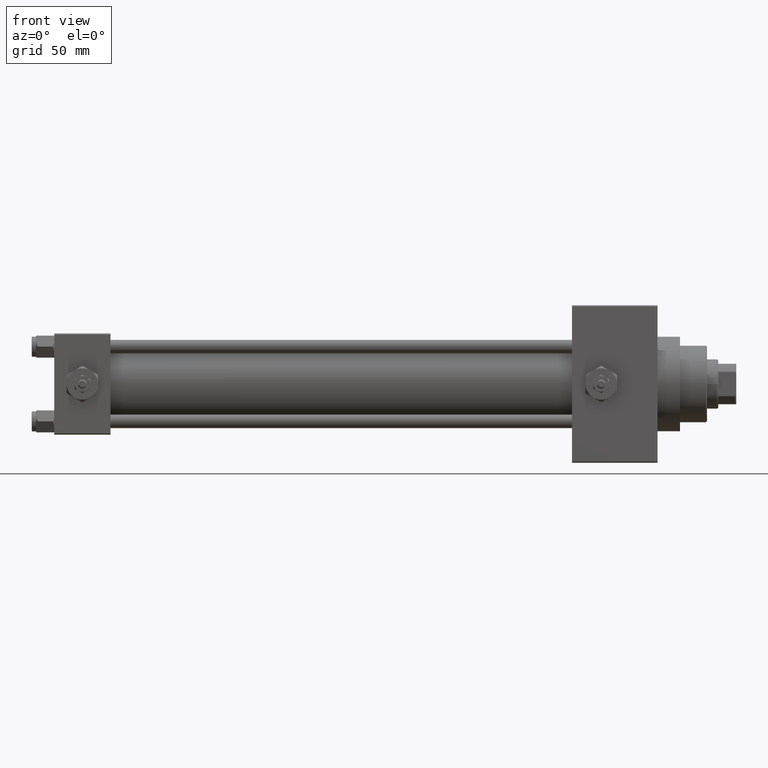
[diagram: clean part render]
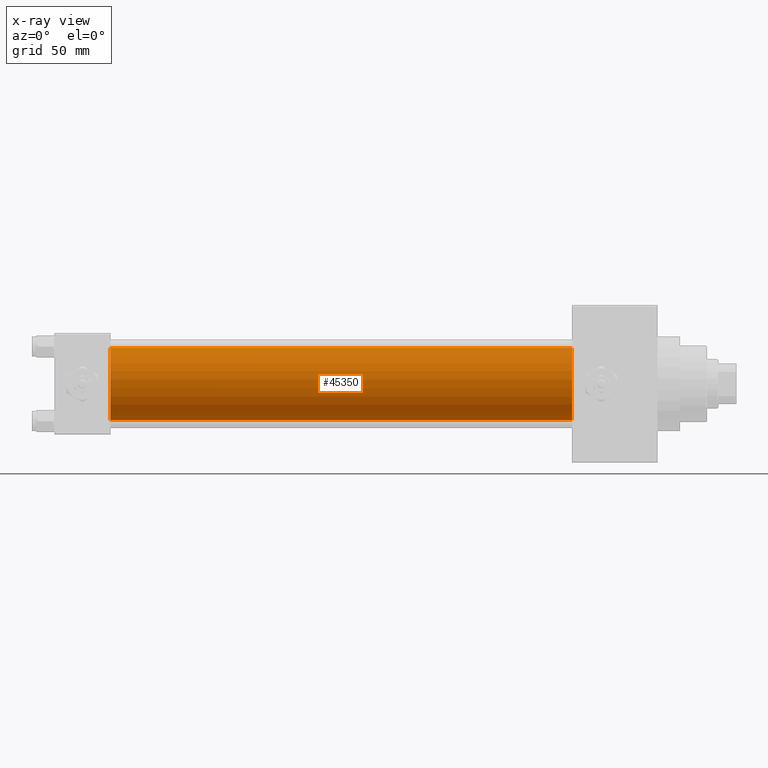
[diagram: x-ray — body ghosted, one internal face saturated and labeled with its STEP entity id]
A machine part, front view, then the same camera in x-ray: the body is ghosted and one INTERNAL B-rep face — a face not visible from any outside direction — is saturated and labeled: STEP entity #45350.
In plain terms, the highlighted cylindrical surface (edge-blend (fillet) strip) has radius 16 mm, axis along (-1, -0, -0).
Its self-contained STEP definition (entity closure, byte-faithful):
#76 = CARTESIAN_POINT ( 'NONE',  ( 229.9999999999999716, -2.602085213965210642E-15, 16.00000000000000000 ) ) ;
#1355 = DIRECTION ( 'NONE',  ( 0.000000000000000000, 0.000000000000000000, 1.000000000000000000 ) ) ;
#3175 = AXIS2_PLACEMENT_3D ( 'NONE', #22267, #45100, #37896 ) ;
#5864 = DIRECTION ( 'NONE',  ( -1.000000000000000000, -0.000000000000000000, -0.000000000000000000 ) ) ;
#6346 = LINE ( 'NONE', #32641, #46060 ) ;
#6479 = EDGE_CURVE ( 'NONE', #29850, #15075, #37717, .T. ) ;
#8243 = CARTESIAN_POINT ( 'NONE',  ( 229.9999999999999716, -6.426503353294460032E-16, -16.00000000000000000 ) ) ;
#8539 = CARTESIAN_POINT ( 'NONE',  ( 229.9999999999999716, -2.602085213965210642E-15, 0.000000000000000000 ) ) ;
#14069 = DIRECTION ( 'NONE',  ( 0.000000000000000000, 0.000000000000000000, -1.000000000000000000 ) ) ;
#14184 = CARTESIAN_POINT ( 'NONE',  ( 25.00000000000000000, -2.602085213965210642E-15, 16.00000000000000000 ) ) ;
#14714 = AXIS2_PLACEMENT_3D ( 'NONE', #21766, #45096, #14069 ) ;
#14981 = LINE ( 'NONE', #25897, #20135 ) ;
#15075 = VERTEX_POINT ( 'NONE', #8243 ) ;
#16829 = ORIENTED_EDGE ( 'NONE', *, *, #36868, .T. ) ;
#18030 = CARTESIAN_POINT ( 'NONE',  ( 25.00000000000000000, -6.426503353294460032E-16, -16.00000000000000000 ) ) ;
#18707 = VERTEX_POINT ( 'NONE', #14184 ) ;
#19739 = EDGE_CURVE ( 'NONE', #18707, #42527, #29294, .T. ) ;
#20135 = VECTOR ( 'NONE', #26870, 1000.000000000000000 ) ;
#21766 = CARTESIAN_POINT ( 'NONE',  ( 229.9999999999999716, -2.602085213965210642E-15, 0.000000000000000000 ) ) ;
#22046 = EDGE_CURVE ( 'NONE', #29850, #18707, #6346, .T. ) ;
#22267 = CARTESIAN_POINT ( 'NONE',  ( 25.00000000000000000, -2.602085213965210642E-15, 0.000000000000000000 ) ) ;
#22776 = AXIS2_PLACEMENT_3D ( 'NONE', #8539, #43294, #1355 ) ;
#25897 = CARTESIAN_POINT ( 'NONE',  ( 229.9999999999999716, -6.426503353294460032E-16, -16.00000000000000000 ) ) ;
#26870 = DIRECTION ( 'NONE',  ( -1.000000000000000000, -0.000000000000000000, -0.000000000000000000 ) ) ;
#27808 = ORIENTED_EDGE ( 'NONE', *, *, #6479, .T. ) ;
#28136 = FACE_OUTER_BOUND ( 'NONE', #33779, .T. ) ;
#29294 = CIRCLE ( 'NONE', #3175, 16.00000000000000000 ) ;
#29850 = VERTEX_POINT ( 'NONE', #76 ) ;
#32641 = CARTESIAN_POINT ( 'NONE',  ( 229.9999999999999716, -2.602085213965210642E-15, 16.00000000000000000 ) ) ;
#33779 = EDGE_LOOP ( 'NONE', ( #27808, #16829, #35518, #41307 ) ) ;
#35518 = ORIENTED_EDGE ( 'NONE', *, *, #19739, .F. ) ;
#36868 = EDGE_CURVE ( 'NONE', #15075, #42527, #14981, .T. ) ;
#37717 = CIRCLE ( 'NONE', #14714, 16.00000000000000000 ) ;
#37896 = DIRECTION ( 'NONE',  ( 0.000000000000000000, 0.000000000000000000, -1.000000000000000000 ) ) ;
#41307 = ORIENTED_EDGE ( 'NONE', *, *, #22046, .F. ) ;
#42527 = VERTEX_POINT ( 'NONE', #18030 ) ;
#43294 = DIRECTION ( 'NONE',  ( -1.000000000000000000, -0.000000000000000000, -0.000000000000000000 ) ) ;
#45096 = DIRECTION ( 'NONE',  ( 1.000000000000000000, 0.000000000000000000, 0.000000000000000000 ) ) ;
#45100 = DIRECTION ( 'NONE',  ( 1.000000000000000000, 0.000000000000000000, 0.000000000000000000 ) ) ;
#45350 = ADVANCED_FACE ( 'NONE', ( #28136 ), #46255, .F. ) ;
#46060 = VECTOR ( 'NONE', #5864, 1000.000000000000000 ) ;
#46255 = CYLINDRICAL_SURFACE ( 'NONE', #22776, 16.00000000000000000 ) ;